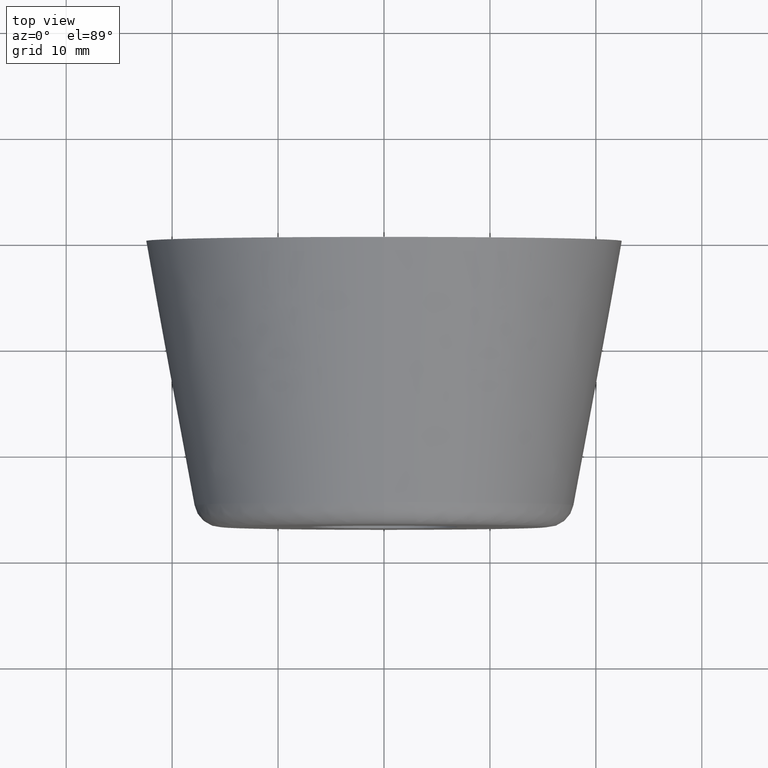
[diagram: clean part render]
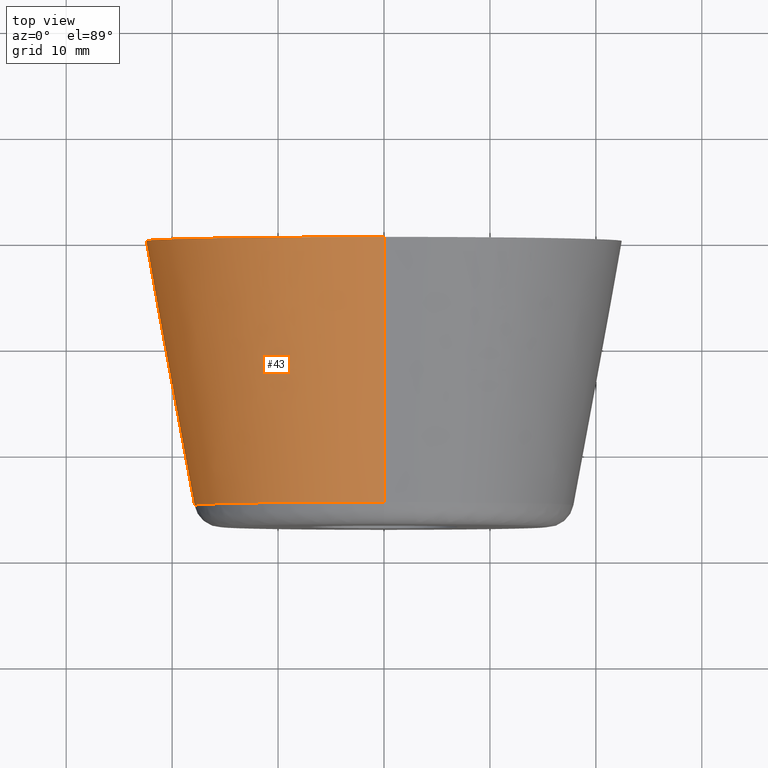
[diagram: same view with one face highlighted and labeled with its STEP entity id]
A machine part, top view. The second image highlights one B-rep face of the part: STEP entity #43.
In plain terms, the highlighted face is a freeform B-spline surface patch.
Its self-contained STEP definition (entity closure, byte-faithful):
#43=ADVANCED_FACE('',(#85),#84,.T.);
#84=( BOUNDED_SURFACE() B_SPLINE_SURFACE( 2,1,((#182,#183),(#184,#185),(#186,#187),(#188,#189),(#190,#191)), .UNSPECIFIED.,.F.,.F.,.F.) B_SPLINE_SURFACE_WITH_KNOTS((3,2,3),(2,2),(0.00000000000E+00,5.00000000000E-01,1.00000000000E+00),(0.00000000000E+00,1.00000000000E+00), .UNSPECIFIED. ) GEOMETRIC_REPRESENTATION_ITEM() RATIONAL_B_SPLINE_SURFACE(((1.00000000000E+00,1.00000000000E+00),(7.07106781187E-01,7.07106781187E-01),(1.00000000000E+00,1.00000000000E+00),(7.07106781187E-01,7.07106781187E-01),(1.00000000000E+00,1.00000000000E+00))) REPRESENTATION_ITEM('') SURFACE() );
#85=FACE_OUTER_BOUND('',#192,.T.);
#182=CARTESIAN_POINT('',(-4.37900933123E-15,-2.49552231505E+01,-1.78786623795E+01));
#183=CARTESIAN_POINT('',(-5.51091059616E-15,0.00000000000E+00,-2.25000000000E+01));
#184=CARTESIAN_POINT('',(-1.78786623795E+01,-2.49552231505E+01,-1.78786623795E+01));
#185=CARTESIAN_POINT('',(-2.25000000000E+01,0.00000000000E+00,-2.25000000000E+01));
#186=CARTESIAN_POINT('',(-1.78786623795E+01,-2.49552231505E+01,3.28425699842E-15));
#187=CARTESIAN_POINT('',(-2.25000000000E+01,0.00000000000E+00,4.13318294712E-15));
#188=CARTESIAN_POINT('',(-1.78786623795E+01,-2.49552231505E+01,1.78786623795E+01));
#189=CARTESIAN_POINT('',(-2.25000000000E+01,0.00000000000E+00,2.25000000000E+01));
#190=CARTESIAN_POINT('',(2.18950466561E-15,-2.49552231505E+01,1.78786623795E+01));
#191=CARTESIAN_POINT('',(2.75545529808E-15,0.00000000000E+00,2.25000000000E+01));
#192=EDGE_LOOP('',(#288,#289,#290,#291));
#288=ORIENTED_EDGE('',*,*,#320,.T.);
#289=ORIENTED_EDGE('',*,*,#332,.F.);
#290=ORIENTED_EDGE('',*,*,#333,.F.);
#291=ORIENTED_EDGE('',*,*,#334,.T.);
#320=EDGE_CURVE('',#342,#343,#344,.T.);
#332=EDGE_CURVE('',#426,#343,#427,.T.);
#333=EDGE_CURVE('',#433,#426,#434,.T.);
#334=EDGE_CURVE('',#433,#342,#440,.T.);
#342=VERTEX_POINT('',#488);
#343=VERTEX_POINT('',#489);
#344=CIRCLE('',#493,2.25000000000E+01);
#426=VERTEX_POINT('',#548);
#427=(BOUNDED_CURVE() B_SPLINE_CURVE(1,(#549,#550),.UNSPECIFIED.,.F.,.F.) B_SPLINE_CURVE_WITH_KNOTS((2,2),(0.00000000000E+00,1.00000000000E+00),.UNSPECIFIED.) CURVE() GEOMETRIC_REPRESENTATION_ITEM() RATIONAL_B_SPLINE_CURVE((1.00000000000E+00,1.00000000000E+00)) REPRESENTATION_ITEM('') );
#433=VERTEX_POINT('',#551);
#434=CIRCLE('',#555,1.78786623795E+01);
#440=(BOUNDED_CURVE() B_SPLINE_CURVE(1,(#556,#557),.UNSPECIFIED.,.F.,.F.) B_SPLINE_CURVE_WITH_KNOTS((2,2),(0.00000000000E+00,1.00000000000E+00),.UNSPECIFIED.) CURVE() GEOMETRIC_REPRESENTATION_ITEM() RATIONAL_B_SPLINE_CURVE((7.50000000000E-01,7.50000000000E-01)) REPRESENTATION_ITEM('') );
#488=CARTESIAN_POINT('',(1.18423789293E-15,0.00000000000E+00,2.25000000000E+01));
#489=CARTESIAN_POINT('',(0.00000000000E+00,0.00000000000E+00,-2.25000000000E+01));
#490=CARTESIAN_POINT('',(0.00000000000E+00,0.00000000000E+00,0.00000000000E+00));
#491=DIRECTION('',(0.00000000000E+00,-1.00000000000E+00,-0.00000000000E+00));
#492=DIRECTION('',(-1.22460635382E-16,0.00000000000E+00,-1.00000000000E+00));
#493=AXIS2_PLACEMENT_3D('',#490,#491,#492);
#548=CARTESIAN_POINT('',(0.00000000000E+00,-2.49552231505E+01,-1.78786623795E+01));
#549=CARTESIAN_POINT('',(-4.37886470957E-15,-2.49552231505E+01,-1.78786623795E+01));
#550=CARTESIAN_POINT('',(-5.51072859220E-15,0.00000000000E+00,-2.25000000000E+01));
#551=CARTESIAN_POINT('',(1.18423789293E-15,-2.49552231505E+01,1.78786623795E+01));
#552=CARTESIAN_POINT('',(0.00000000000E+00,-2.49552231505E+01,0.00000000000E+00));
#553=DIRECTION('',(0.00000000000E+00,-1.00000000000E+00,-0.00000000000E+00));
#554=DIRECTION('',(-1.22460635382E-16,0.00000000000E+00,-1.00000000000E+00));
#555=AXIS2_PLACEMENT_3D('',#552,#553,#554);
#556=CARTESIAN_POINT('',(4.73695157173E-15,-2.49552231505E+01,1.78786623795E+01));
#557=CARTESIAN_POINT('',(7.10542735760E-15,0.00000000000E+00,2.25000000000E+01));